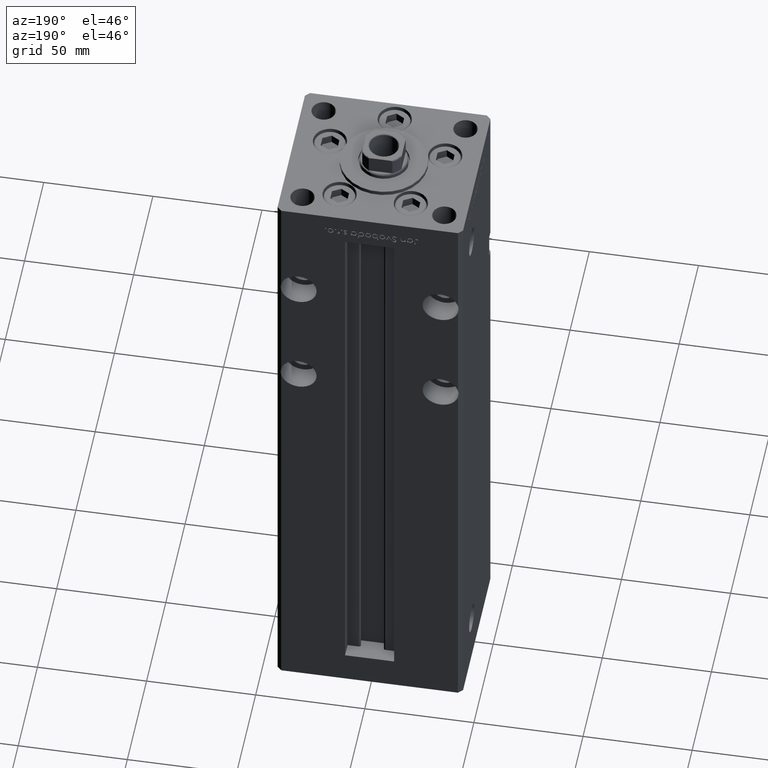
[diagram: clean part render]
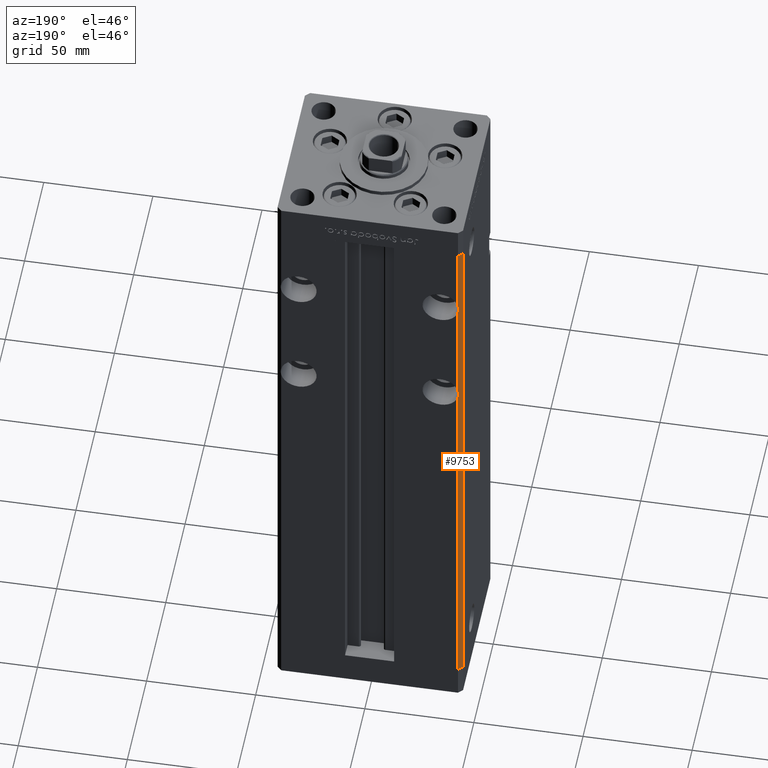
[diagram: same view with one face highlighted and labeled with its STEP entity id]
A machine part, auxiliary view. The second image highlights one B-rep face of the part: STEP entity #9753.
In plain terms, the highlighted planar face has unit normal (0.7071, -0.7071, 0).
Its self-contained STEP definition (entity closure, byte-faithful):
#1315 = CARTESIAN_POINT ( 'NONE',  ( -42.50000000000001421, 35.50000000000000711, 268.5000000000000000 ) ) ;
#2544 = VERTEX_POINT ( 'NONE', #42442 ) ;
#2951 = CARTESIAN_POINT ( 'NONE',  ( -40.83505154639175316, 37.16494845360825394, 178.3142925110983299 ) ) ;
#3231 = FACE_OUTER_BOUND ( 'NONE', #13870, .T. ) ;
#3593 = EDGE_CURVE ( 'NONE', #34518, #2544, #32868, .T. ) ;
#3834 = CARTESIAN_POINT ( 'NONE',  ( -40.50000000000000711, 37.50000000000000000, 0.000000000000000000 ) ) ;
#5237 = EDGE_CURVE ( 'NONE', #20245, #40330, #38026, .T. ) ;
#6393 = EDGE_CURVE ( 'NONE', #52606, #34518, #23466, .T. ) ;
#6985 = VECTOR ( 'NONE', #17214, 1000.000000000000114 ) ;
#7509 = DIRECTION ( 'NONE',  ( 0.7071067811865451302, -0.7071067811865500152, 0.000000000000000000 ) ) ;
#9472 = ORIENTED_EDGE ( 'NONE', *, *, #3593, .T. ) ;
#9753 = ADVANCED_FACE ( 'NONE', ( #3231 ), #48628, .F. ) ;
#12231 = EDGE_CURVE ( 'NONE', #14220, #51036, #50516, .T. ) ;
#12440 = LINE ( 'NONE', #48997, #38126 ) ;
#13870 = EDGE_LOOP ( 'NONE', ( #35603, #39597, #31882, #9472, #49215, #18374, #37448, #40338 ) ) ;
#14220 = VERTEX_POINT ( 'NONE', #3834 ) ;
#14924 = VECTOR ( 'NONE', #39593, 1000.000000000000000 ) ;
#15645 = DIRECTION ( 'NONE',  ( -0.000000000000000000, -0.000000000000000000, -1.000000000000000000 ) ) ;
#17087 = LINE ( 'NONE', #45843, #52995 ) ;
#17214 = DIRECTION ( 'NONE',  ( -0.7071067811865500152, -0.7071067811865451302, 0.000000000000000000 ) ) ;
#17345 = DIRECTION ( 'NONE',  ( -0.7071067811865500152, -0.7071067811865451302, 0.000000000000000000 ) ) ;
#18254 = CARTESIAN_POINT ( 'NONE',  ( -42.50000000000001421, 35.50000000000000711, 0.000000000000000000 ) ) ;
#18374 = ORIENTED_EDGE ( 'NONE', *, *, #12231, .T. ) ;
#19112 = CARTESIAN_POINT ( 'NONE',  ( -40.83505154639175316, 37.16494845360825394, 234.6857074889016985 ) ) ;
#20245 = VERTEX_POINT ( 'NONE', #51668 ) ;
#21516 = CARTESIAN_POINT ( 'NONE',  ( -40.50000000000000711, 37.50000000000000000, 0.000000000000000000 ) ) ;
#23117 = CARTESIAN_POINT ( 'NONE',  ( -40.50000000000000711, 37.50000000000000000, 181.0155644370746302 ) ) ;
#23217 = CARTESIAN_POINT ( 'NONE',  ( -40.50000000000000711, 37.50000000000000000, 268.5000000000000000 ) ) ;
#23466 = LINE ( 'NONE', #52203, #38704 ) ;
#24565 = EDGE_CURVE ( 'NONE', #40330, #52606, #53116, .T. ) ;
#25571 = CARTESIAN_POINT ( 'NONE',  ( -40.50000000000000711, 37.50000000000000000, 181.0155644370746302 ) ) ;
#28754 = CARTESIAN_POINT ( 'NONE',  ( -40.50000000000000711, 37.50000000000000000, 231.9844355629253982 ) ) ;
#29117 = DIRECTION ( 'NONE',  ( -0.000000000000000000, -0.000000000000000000, -1.000000000000000000 ) ) ;
#30993 = VECTOR ( 'NONE', #34801, 1000.000000000000000 ) ;
#31882 = ORIENTED_EDGE ( 'NONE', *, *, #6393, .T. ) ;
#32868 =( BOUNDED_CURVE ( )  B_SPLINE_CURVE ( 3, ( #23117, #36001, #2951, #52389 ),
 .UNSPECIFIED., .F., .F. ) 
 B_SPLINE_CURVE_WITH_KNOTS ( ( 4, 4 ),
 ( 2.894783720120222004, 3.388401587059364228 ),
 .UNSPECIFIED. ) 
 CURVE ( )  GEOMETRIC_REPRESENTATION_ITEM ( )  RATIONAL_B_SPLINE_CURVE ( ( 1.000000000000000000, 0.9797979797979801120, 0.9797979797979801120, 1.000000000000000000 ) ) 
 REPRESENTATION_ITEM ( '' )  );
#34330 = EDGE_CURVE ( 'NONE', #2544, #14220, #48455, .T. ) ;
#34518 = VERTEX_POINT ( 'NONE', #25571 ) ;
#34801 = DIRECTION ( 'NONE',  ( -0.000000000000000000, -0.000000000000000000, -1.000000000000000000 ) ) ;
#35504 = CARTESIAN_POINT ( 'NONE',  ( -40.83505154639175316, 37.16494845360825394, 233.3142925110983299 ) ) ;
#35603 = ORIENTED_EDGE ( 'NONE', *, *, #5237, .T. ) ;
#35673 = CARTESIAN_POINT ( 'NONE',  ( -40.50000000000000711, 37.50000000000000000, 236.0155644370746302 ) ) ;
#36001 = CARTESIAN_POINT ( 'NONE',  ( -40.83505154639175316, 37.16494845360825394, 179.6857074889016985 ) ) ;
#36288 = EDGE_CURVE ( 'NONE', #50305, #51036, #12440, .T. ) ;
#37448 = ORIENTED_EDGE ( 'NONE', *, *, #36288, .F. ) ;
#38026 = LINE ( 'NONE', #47152, #30993 ) ;
#38126 = VECTOR ( 'NONE', #29117, 1000.000000000000000 ) ;
#38704 = VECTOR ( 'NONE', #15645, 1000.000000000000000 ) ;
#39593 = DIRECTION ( 'NONE',  ( -0.000000000000000000, -0.000000000000000000, -1.000000000000000000 ) ) ;
#39597 = ORIENTED_EDGE ( 'NONE', *, *, #24565, .T. ) ;
#40330 = VERTEX_POINT ( 'NONE', #35673 ) ;
#40338 = ORIENTED_EDGE ( 'NONE', *, *, #44145, .F. ) ;
#42442 = CARTESIAN_POINT ( 'NONE',  ( -40.50000000000000711, 37.50000000000000000, 176.9844355629253982 ) ) ;
#44145 = EDGE_CURVE ( 'NONE', #20245, #50305, #17087, .T. ) ;
#44591 = DIRECTION ( 'NONE',  ( 0.7071067811865500152, 0.7071067811865451302, 0.000000000000000000 ) ) ;
#45843 = CARTESIAN_POINT ( 'NONE',  ( -40.50000000000000711, 37.50000000000000000, 268.5000000000000000 ) ) ;
#47152 = CARTESIAN_POINT ( 'NONE',  ( -40.50000000000000711, 37.50000000000000000, 268.5000000000000000 ) ) ;
#47587 = CARTESIAN_POINT ( 'NONE',  ( -40.50000000000000711, 37.50000000000000000, 236.0155644370746302 ) ) ;
#48455 = LINE ( 'NONE', #23217, #14924 ) ;
#48628 = PLANE ( 'NONE',  #51687 ) ;
#48997 = CARTESIAN_POINT ( 'NONE',  ( -42.50000000000001421, 35.50000000000000711, 268.5000000000000000 ) ) ;
#49157 = CARTESIAN_POINT ( 'NONE',  ( -40.50000000000000711, 37.50000000000000000, 268.5000000000000000 ) ) ;
#49215 = ORIENTED_EDGE ( 'NONE', *, *, #34330, .T. ) ;
#50305 = VERTEX_POINT ( 'NONE', #1315 ) ;
#50516 = LINE ( 'NONE', #21516, #6985 ) ;
#51036 = VERTEX_POINT ( 'NONE', #18254 ) ;
#51668 = CARTESIAN_POINT ( 'NONE',  ( -40.50000000000000711, 37.50000000000000000, 268.5000000000000000 ) ) ;
#51687 = AXIS2_PLACEMENT_3D ( 'NONE', #49157, #7509, #44591 ) ;
#51889 = CARTESIAN_POINT ( 'NONE',  ( -40.50000000000000711, 37.50000000000000000, 231.9844355629253982 ) ) ;
#52203 = CARTESIAN_POINT ( 'NONE',  ( -40.50000000000000711, 37.50000000000000000, 268.5000000000000000 ) ) ;
#52389 = CARTESIAN_POINT ( 'NONE',  ( -40.50000000000000711, 37.50000000000000000, 176.9844355629253982 ) ) ;
#52606 = VERTEX_POINT ( 'NONE', #28754 ) ;
#52995 = VECTOR ( 'NONE', #17345, 1000.000000000000114 ) ;
#53116 =( BOUNDED_CURVE ( )  B_SPLINE_CURVE ( 3, ( #47587, #19112, #35504, #51889 ),
 .UNSPECIFIED., .F., .F. ) 
 B_SPLINE_CURVE_WITH_KNOTS ( ( 4, 4 ),
 ( 2.894783720120222004, 3.388401587059364228 ),
 .UNSPECIFIED. ) 
 CURVE ( )  GEOMETRIC_REPRESENTATION_ITEM ( )  RATIONAL_B_SPLINE_CURVE ( ( 1.000000000000000000, 0.9797979797979801120, 0.9797979797979801120, 1.000000000000000000 ) ) 
 REPRESENTATION_ITEM ( '' )  );